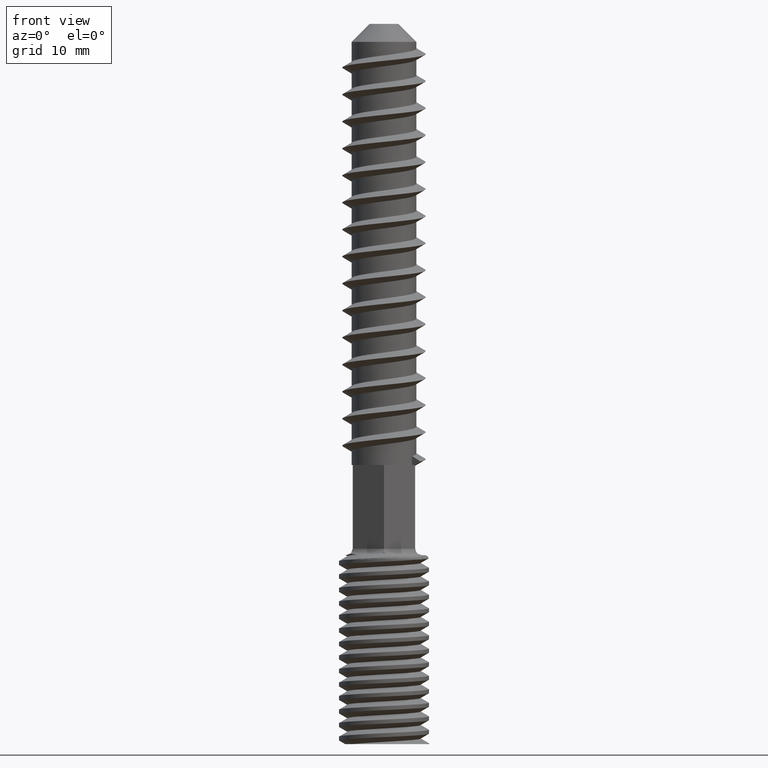
[diagram: clean part render]
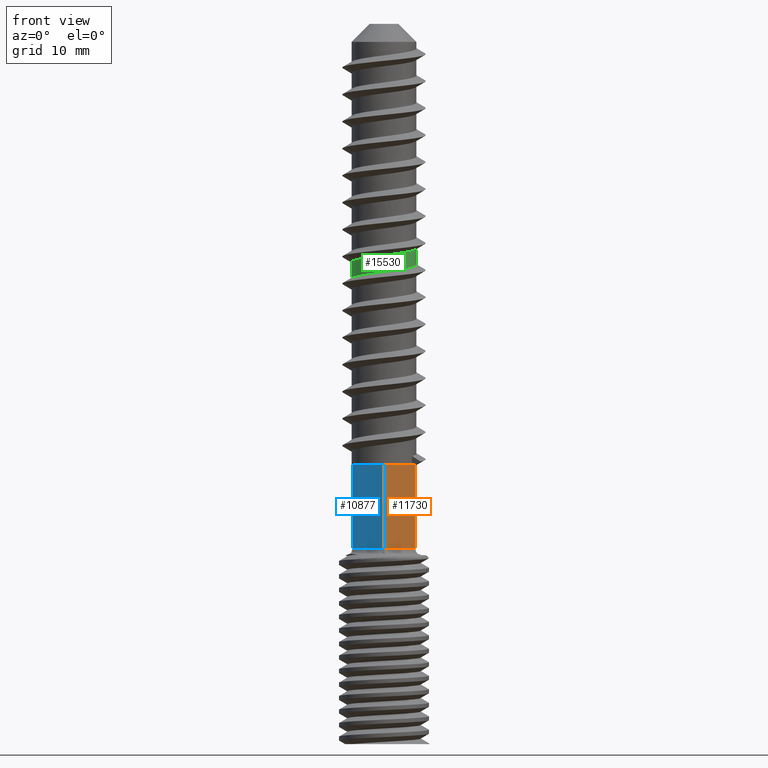
[diagram: same view with three faces highlighted in distinct colors, each labeled with its STEP entity id]
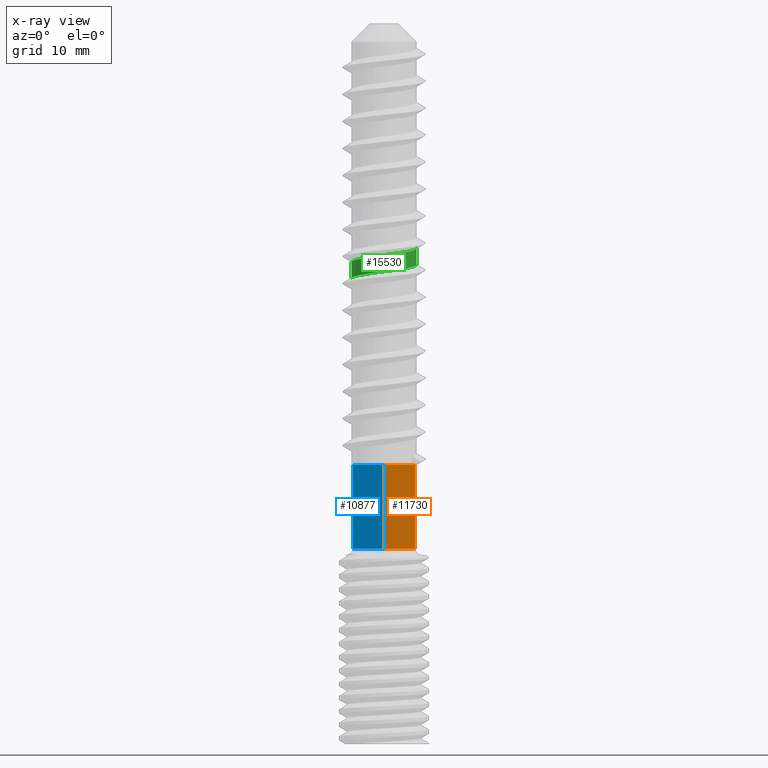
[diagram: x-ray of the same camera — body ghosted, the three highlighted faces saturated]
A machine part, front view with three faces highlighted in distinct colors.
The next image is the same camera in x-ray (body ghosted, the three faces saturated) — at least one of them is partly hidden behind the body in this view.
Their STEP definitions:

[orange] entity #11730 — the highlighted planar face has unit normal (-0.5, 0.866, 0).
#507 = CARTESIAN_POINT ( 'NONE',  ( 3.464101615137753900, -2.000000000000000000, -37.50000000000000000 ) ) ;
#1354 = CARTESIAN_POINT ( 'NONE',  ( -5.161413159156343100E-016, -4.000000000000000000, -46.79289321881345400 ) ) ;
#1397 = EDGE_CURVE ( 'NONE', #6578, #10977, #16166, .T. ) ;
#1486 = ORIENTED_EDGE ( 'NONE', *, *, #3380, .T. ) ;
#1498 = ORIENTED_EDGE ( 'NONE', *, *, #8461, .F. ) ;
#1565 = PLANE ( 'NONE',  #8994 ) ;
#2231 = VERTEX_POINT ( 'NONE', #14131 ) ;
#3147 = DIRECTION ( 'NONE',  ( -0.5000000000000001100, 0.8660254037844387100, 0.0000000000000000000 ) ) ;
#3380 = EDGE_CURVE ( 'NONE', #2231, #6578, #6943, .T. ) ;
#4048 = EDGE_CURVE ( 'NONE', #10977, #14747, #14921, .T. ) ;
#4105 = DIRECTION ( 'NONE',  ( -0.8660254037844386000, -0.5000000000000000000, 0.0000000000000000000 ) ) ;
#4258 = CARTESIAN_POINT ( 'NONE',  ( -5.161413159156343100E-016, -4.000000000000000000, -47.50000000000000000 ) ) ;
#5221 = VERTEX_POINT ( 'NONE', #6849 ) ;
#6120 = EDGE_CURVE ( 'NONE', #5221, #7996, #14106, .T. ) ;
#6500 = FACE_OUTER_BOUND ( 'NONE', #10248, .T. ) ;
#6578 = VERTEX_POINT ( 'NONE', #16855 ) ;
#6849 = CARTESIAN_POINT ( 'NONE',  ( -5.161413159156343100E-016, -4.000000000000000000, -46.79289321881345400 ) ) ;
#6909 = ORIENTED_EDGE ( 'NONE', *, *, #9095, .T. ) ;
#6943 = LINE ( 'NONE', #507, #18313 ) ;
#7636 = CARTESIAN_POINT ( 'NONE',  ( 1.154700538379161300, -3.333333333333385000, -46.79289321881345400 ) ) ;
#7996 = VERTEX_POINT ( 'NONE', #9232 ) ;
#8279 = DIRECTION ( 'NONE',  ( -0.8660254037844386000, -0.5000000000000000000, 0.0000000000000000000 ) ) ;
#8461 = EDGE_CURVE ( 'NONE', #5221, #14747, #15730, .T. ) ;
#8502 = ORIENTED_EDGE ( 'NONE', *, *, #4048, .T. ) ;
#8994 = AXIS2_PLACEMENT_3D ( 'NONE', #18592, #3147, #13992 ) ;
#9095 = EDGE_CURVE ( 'NONE', #7996, #2231, #12339, .T. ) ;
#9189 = CARTESIAN_POINT ( 'NONE',  ( 2.309401076758254200, -2.666666666666809500, -46.79289321881345400 ) ) ;
#9232 = CARTESIAN_POINT ( 'NONE',  ( 3.464101615137753900, -2.000000000000000000, -46.79289321881345400 ) ) ;
#10248 = EDGE_LOOP ( 'NONE', ( #1498, #12730, #6909, #1486, #14715, #8502 ) ) ;
#10321 = VECTOR ( 'NONE', #11772, 1000.000000000000200 ) ;
#10487 = DIRECTION ( 'NONE',  ( -0.0000000000000000000, -0.0000000000000000000, 1.000000000000000000 ) ) ;
#10977 = VERTEX_POINT ( 'NONE', #17506 ) ;
#11057 = CARTESIAN_POINT ( 'NONE',  ( -5.161413159156343100E-016, -4.000000000000000000, -37.50000000000000000 ) ) ;
#11597 = VECTOR ( 'NONE', #4105, 1000.000000000000200 ) ;
#11730 = ADVANCED_FACE ( 'NONE', ( #6500 ), #1565, .F. ) ;
#11772 = DIRECTION ( 'NONE',  ( -0.8660254037844386000, -0.5000000000000000000, 0.0000000000000000000 ) ) ;
#12339 = LINE ( 'NONE', #17988, #20090 ) ;
#12730 = ORIENTED_EDGE ( 'NONE', *, *, #6120, .T. ) ;
#13992 = DIRECTION ( 'NONE',  ( -0.8660254037844386000, -0.5000000000000000000, 0.0000000000000000000 ) ) ;
#14106 = B_SPLINE_CURVE_WITH_KNOTS ( 'NONE', 3,
 ( #1354, #7636, #9189, #20025 ),
 .UNSPECIFIED., .F., .F.,
 ( 4, 4 ),
 ( 0.0000000000000000000, 1.000000000000000000 ),
 .UNSPECIFIED. ) ;
#14131 = CARTESIAN_POINT ( 'NONE',  ( 3.464101615137753900, -2.000000000000000000, -37.50000000000000000 ) ) ;
#14715 = ORIENTED_EDGE ( 'NONE', *, *, #1397, .T. ) ;
#14747 = VERTEX_POINT ( 'NONE', #11057 ) ;
#14921 = LINE ( 'NONE', #16413, #10321 ) ;
#14938 = CARTESIAN_POINT ( 'NONE',  ( 3.464101615137753900, -2.000000000000000000, -37.50000000000000000 ) ) ;
#15225 = VECTOR ( 'NONE', #10487, 1000.000000000000000 ) ;
#15730 = LINE ( 'NONE', #4258, #15225 ) ;
#16166 = LINE ( 'NONE', #14938, #11597 ) ;
#16413 = CARTESIAN_POINT ( 'NONE',  ( 3.464101615137753900, -2.000000000000000000, -37.50000000000000000 ) ) ;
#16855 = CARTESIAN_POINT ( 'NONE',  ( 2.580578944992736100, -2.510102051443362300, -37.50000000000000000 ) ) ;
#17506 = CARTESIAN_POINT ( 'NONE',  ( 0.8835226701450180600, -3.489897948556635900, -37.50000000000000000 ) ) ;
#17988 = CARTESIAN_POINT ( 'NONE',  ( 3.464101615137753900, -2.000000000000000000, -47.50000000000000000 ) ) ;
#18313 = VECTOR ( 'NONE', #8279, 1000.000000000000200 ) ;
#18592 = CARTESIAN_POINT ( 'NONE',  ( 3.464101615137753900, -2.000000000000000000, -47.50000000000000000 ) ) ;
#19554 = DIRECTION ( 'NONE',  ( -0.0000000000000000000, -0.0000000000000000000, 1.000000000000000000 ) ) ;
#20025 = CARTESIAN_POINT ( 'NONE',  ( 3.464101615137753900, -2.000000000000000000, -46.79289321881345400 ) ) ;
#20090 = VECTOR ( 'NONE', #19554, 1000.000000000000000 ) ;

[blue] entity #10877 — the highlighted planar face has unit normal (0.5, 0.866, 0).
#418 = DIRECTION ( 'NONE',  ( -0.8660254037844386000, 0.5000000000000000000, 0.0000000000000000000 ) ) ;
#849 = VERTEX_POINT ( 'NONE', #8819 ) ;
#1104 = VECTOR ( 'NONE', #5176, 1000.000000000000000 ) ;
#1720 = VERTEX_POINT ( 'NONE', #13447 ) ;
#2017 = DIRECTION ( 'NONE',  ( -0.8660254037844386000, 0.5000000000000000000, 0.0000000000000000000 ) ) ;
#2395 = ORIENTED_EDGE ( 'NONE', *, *, #8461, .T. ) ;
#2446 = ORIENTED_EDGE ( 'NONE', *, *, #13114, .T. ) ;
#3092 = LINE ( 'NONE', #6310, #20069 ) ;
#3631 = ORIENTED_EDGE ( 'NONE', *, *, #20127, .T. ) ;
#4184 = AXIS2_PLACEMENT_3D ( 'NONE', #19006, #9741, #418 ) ;
#4258 = CARTESIAN_POINT ( 'NONE',  ( -5.161413159156343100E-016, -4.000000000000000000, -47.50000000000000000 ) ) ;
#4925 = LINE ( 'NONE', #14448, #9034 ) ;
#5049 = DIRECTION ( 'NONE',  ( -0.8660254037844386000, 0.5000000000000000000, 0.0000000000000000000 ) ) ;
#5176 = DIRECTION ( 'NONE',  ( -0.0000000000000000000, -0.0000000000000000000, 1.000000000000000000 ) ) ;
#5202 = ORIENTED_EDGE ( 'NONE', *, *, #10802, .T. ) ;
#5221 = VERTEX_POINT ( 'NONE', #6849 ) ;
#5635 = VERTEX_POINT ( 'NONE', #14689 ) ;
#5791 = LINE ( 'NONE', #15380, #14042 ) ;
#5899 = DIRECTION ( 'NONE',  ( -0.8660254037844386000, 0.5000000000000000000, 0.0000000000000000000 ) ) ;
#6310 = CARTESIAN_POINT ( 'NONE',  ( -5.161413159156343100E-016, -4.000000000000000000, -37.50000000000000000 ) ) ;
#6849 = CARTESIAN_POINT ( 'NONE',  ( -5.161413159156343100E-016, -4.000000000000000000, -46.79289321881345400 ) ) ;
#7940 = EDGE_CURVE ( 'NONE', #14747, #15305, #5791, .T. ) ;
#8181 = PLANE ( 'NONE',  #4184 ) ;
#8440 = LINE ( 'NONE', #16001, #1104 ) ;
#8461 = EDGE_CURVE ( 'NONE', #5221, #14747, #15730, .T. ) ;
#8819 = CARTESIAN_POINT ( 'NONE',  ( -2.580578944992733000, -2.510102051443365400, -37.50000000000000000 ) ) ;
#8945 = CARTESIAN_POINT ( 'NONE',  ( -5.161413159156343100E-016, -4.000000000000000000, -46.79289321881345400 ) ) ;
#9034 = VECTOR ( 'NONE', #2017, 1000.000000000000200 ) ;
#9741 = DIRECTION ( 'NONE',  ( 0.5000000000000001100, 0.8660254037844387100, 0.0000000000000000000 ) ) ;
#10487 = DIRECTION ( 'NONE',  ( -0.0000000000000000000, -0.0000000000000000000, 1.000000000000000000 ) ) ;
#10802 = EDGE_CURVE ( 'NONE', #849, #1720, #3092, .T. ) ;
#10877 = ADVANCED_FACE ( 'NONE', ( #19132 ), #8181, .F. ) ;
#11057 = CARTESIAN_POINT ( 'NONE',  ( -5.161413159156343100E-016, -4.000000000000000000, -37.50000000000000000 ) ) ;
#11925 = CARTESIAN_POINT ( 'NONE',  ( -2.309401076759138000, -2.666666666666300100, -46.79289321881346100 ) ) ;
#13114 = EDGE_CURVE ( 'NONE', #5635, #5221, #17983, .T. ) ;
#13447 = CARTESIAN_POINT ( 'NONE',  ( -3.464101615137754800, -2.000000000000000000, -37.50000000000000000 ) ) ;
#14042 = VECTOR ( 'NONE', #5899, 1000.000000000000200 ) ;
#14133 = ORIENTED_EDGE ( 'NONE', *, *, #7940, .T. ) ;
#14408 = CARTESIAN_POINT ( 'NONE',  ( -0.8835226701450215000, -3.489897948556635000, -37.50000000000000000 ) ) ;
#14448 = CARTESIAN_POINT ( 'NONE',  ( -5.161413159156343100E-016, -4.000000000000000000, -37.50000000000000000 ) ) ;
#14689 = CARTESIAN_POINT ( 'NONE',  ( -3.464101615137754800, -2.000000000000000000, -46.79289321881345400 ) ) ;
#14747 = VERTEX_POINT ( 'NONE', #11057 ) ;
#14910 = CARTESIAN_POINT ( 'NONE',  ( -3.464101615137754800, -2.000000000000000000, -46.79289321881345400 ) ) ;
#15225 = VECTOR ( 'NONE', #10487, 1000.000000000000000 ) ;
#15305 = VERTEX_POINT ( 'NONE', #14408 ) ;
#15380 = CARTESIAN_POINT ( 'NONE',  ( -5.161413159156343100E-016, -4.000000000000000000, -37.50000000000000000 ) ) ;
#15730 = LINE ( 'NONE', #4258, #15225 ) ;
#16001 = CARTESIAN_POINT ( 'NONE',  ( -3.464101615137754800, -2.000000000000000000, -47.50000000000000000 ) ) ;
#17209 = ORIENTED_EDGE ( 'NONE', *, *, #18421, .F. ) ;
#17444 = EDGE_LOOP ( 'NONE', ( #17209, #2446, #2395, #14133, #3631, #5202 ) ) ;
#17983 = B_SPLINE_CURVE_WITH_KNOTS ( 'NONE', 3,
 ( #14910, #11925, #18207, #8945 ),
 .UNSPECIFIED., .F., .F.,
 ( 4, 4 ),
 ( 0.0000000000000000000, 1.000000000000000000 ),
 .UNSPECIFIED. ) ;
#18207 = CARTESIAN_POINT ( 'NONE',  ( -1.154700538379605000, -3.333333333333129600, -46.79289321881346800 ) ) ;
#18421 = EDGE_CURVE ( 'NONE', #5635, #1720, #8440, .T. ) ;
#19006 = CARTESIAN_POINT ( 'NONE',  ( -5.161413159156343100E-016, -4.000000000000000000, -47.50000000000000000 ) ) ;
#19132 = FACE_OUTER_BOUND ( 'NONE', #17444, .T. ) ;
#20069 = VECTOR ( 'NONE', #5049, 1000.000000000000200 ) ;
#20127 = EDGE_CURVE ( 'NONE', #15305, #849, #4925, .T. ) ;

[green] entity #15530 — the highlighted cylindrical surface (edge-blend (fillet) strip) has radius 3.6 mm, axis along (-0, -0, -1).
#72 = CARTESIAN_POINT ( 'NONE',  ( -0.001273498965122202500, -3.600008534216459800, -14.21259963270011400 ) ) ;
#139 = CARTESIAN_POINT ( 'NONE',  ( -1.025480112269097700, -3.451451366725145000, -14.35010446539633500 ) ) ;
#212 = CARTESIAN_POINT ( 'NONE',  ( -1.953459925939966500, -3.024420234234936000, -14.48692190638841700 ) ) ;
#284 = CARTESIAN_POINT ( 'NONE',  ( -2.435906216946909500, -2.650741003625058900, -14.56634035617683900 ) ) ;
#364 = CARTESIAN_POINT ( 'NONE',  ( -3.287235017634777100, -1.472189547636234600, -14.76214171099243600 ) ) ;
#437 = CARTESIAN_POINT ( 'NONE',  ( -3.599999999999999600, 5.947965109068438500E-015, -14.96243556529822500 ) ) ;
#739 = CARTESIAN_POINT ( 'NONE',  ( 0.0000000000000000000, 0.0000000000000000000, 11.50000000000000000 ) ) ;
#952 = FACE_OUTER_BOUND ( 'NONE', #9576, .T. ) ;
#1207 = ORIENTED_EDGE ( 'NONE', *, *, #9721, .F. ) ;
#1364 = CARTESIAN_POINT ( 'NONE',  ( 3.466260319851641700, -0.9736952085705723500, -13.59372447369084800 ) ) ;
#1429 = CARTESIAN_POINT ( 'NONE',  ( 3.423803458662557200, -1.112461179749797200, -15.40000000000000400 ) ) ;
#1433 = CARTESIAN_POINT ( 'NONE',  ( 3.236058148344677300, -1.578262448695012300, -13.67815296890448300 ) ) ;
#1505 = CARTESIAN_POINT ( 'NONE',  ( 2.538913495245731100, -2.553405595115662200, -13.83982484742612200 ) ) ;
#1572 = CARTESIAN_POINT ( 'NONE',  ( 1.338766677863837400, -3.341940815391229800, -14.03000532809110400 ) ) ;
#1645 = CARTESIAN_POINT ( 'NONE',  ( -0.03713367576130809100, -3.599827985805466000, -14.21720591294399000 ) ) ;
#1715 = CARTESIAN_POINT ( 'NONE',  ( -1.298997023832710000, -3.362027739093514700, -14.38879695402708900 ) ) ;
#1787 = CARTESIAN_POINT ( 'NONE',  ( -2.045810064838124600, -2.962328132613338400, -14.50135333492414900 ) ) ;
#1857 = CARTESIAN_POINT ( 'NONE',  ( -2.475837484302652900, -2.613552922284838600, -14.57357929690265100 ) ) ;
#1923 = CARTESIAN_POINT ( 'NONE',  ( -3.412108989460700800, -1.153054870282660800, -14.80695775959879200 ) ) ;
#2026 = CARTESIAN_POINT ( 'NONE',  ( -3.600000000000000100, 0.0000000000000000000, 11.50000000000000000 ) ) ;
#2649 = VECTOR ( 'NONE', #11354, 1000.000000000000000 ) ;
#2721 = VERTEX_POINT ( 'NONE', #6427 ) ;
#2866 = CARTESIAN_POINT ( 'NONE',  ( 3.600000000032445700, -0.3231666220939533600, -13.50596398588983300 ) ) ;
#2881 = AXIS2_PLACEMENT_3D ( 'NONE', #739, #19393, #13173 ) ;
#2936 = CARTESIAN_POINT ( 'NONE',  ( 3.443107548438815200, -1.051375318813419800, -13.60419661359180800 ) ) ;
#3013 = CARTESIAN_POINT ( 'NONE',  ( 2.116026908252914800, -2.912461179749802100, -15.70000000000000600 ) ) ;
#3018 = CARTESIAN_POINT ( 'NONE',  ( 3.100679103292010900, -1.834702965871396300, -13.71686304284926000 ) ) ;
#3029 = CARTESIAN_POINT ( 'NONE',  ( -3.599999999999999600, 5.947965109068438500E-015, -14.96243556529822500 ) ) ;
#3087 = CARTESIAN_POINT ( 'NONE',  ( 2.433645579025169000, -2.652875075753223600, -13.85901436118013700 ) ) ;
#3155 = CARTESIAN_POINT ( 'NONE',  ( 1.297948047994125000, -3.357893427395129300, -14.03590325286325900 ) ) ;
#3220 = CARTESIAN_POINT ( 'NONE',  ( -0.1604228264149202000, -3.597050058751857500, -14.23314716413053000 ) ) ;
#3292 = CARTESIAN_POINT ( 'NONE',  ( -1.612881301775519000, -3.220117710333730600, -14.43501688987884700 ) ) ;
#3368 = CARTESIAN_POINT ( 'NONE',  ( -2.095360364868798200, -2.927417252431855100, -14.50916508803712400 ) ) ;
#3444 = CARTESIAN_POINT ( 'NONE',  ( -2.793697313265733200, -2.297717871038487600, -14.63320871345388800 ) ) ;
#3525 = CARTESIAN_POINT ( 'NONE',  ( -3.447085846362045700, -1.038086931045098400, -14.82246403084463200 ) ) ;
#4520 = CARTESIAN_POINT ( 'NONE',  ( 3.414226258368754600, -1.142558466397696900, -13.61653284083151900 ) ) ;
#4583 = CARTESIAN_POINT ( 'NONE',  ( 1.431617662130559300E-014, -3.600000000000000100, -16.00000000000000400 ) ) ;
#4588 = CARTESIAN_POINT ( 'NONE',  ( 2.978414192724372400, -2.022605490823922400, -13.74702093352542100 ) ) ;
#4653 = CARTESIAN_POINT ( 'NONE',  ( 2.417656887327562600, -2.667393711962526800, -13.86180850313560800 ) ) ;
#4722 = CARTESIAN_POINT ( 'NONE',  ( 1.247466870134428000, -3.377074642544545000, -14.04317267099161400 ) ) ;
#4782 = CARTESIAN_POINT ( 'NONE',  ( -0.4084447557152157100, -3.578513700060198800, -14.26575246592316600 ) ) ;
#4853 = CARTESIAN_POINT ( 'NONE',  ( -1.699133842054593800, -3.173790334549977400, -14.44808579526445900 ) ) ;
#4926 = CARTESIAN_POINT ( 'NONE',  ( -2.137584913820615100, -2.896724637111411000, -14.51590039646672600 ) ) ;
#5000 = CARTESIAN_POINT ( 'NONE',  ( -2.999876860636573600, -1.990176022875788300, -14.68309200127831300 ) ) ;
#5069 = CARTESIAN_POINT ( 'NONE',  ( -3.454319163814116900, -1.013835512560307400, -14.82573625879292900 ) ) ;
#6006 = CARTESIAN_POINT ( 'NONE',  ( 3.534128698406690600, -0.6855208303300809300, -13.55486857349401800 ) ) ;
#6074 = CARTESIAN_POINT ( 'NONE',  ( 3.364982077094957900, -1.280998237847928800, -13.63554493160489000 ) ) ;
#6102 = ORIENTED_EDGE ( 'NONE', *, *, #9870, .F. ) ;
#6142 = CARTESIAN_POINT ( 'NONE',  ( -2.116026908252891700, -2.912461179749819000, -16.30000000000000400 ) ) ;
#6146 = CARTESIAN_POINT ( 'NONE',  ( 2.940262142778992300, -2.077245785874712900, -13.75600191141621500 ) ) ;
#6208 = CARTESIAN_POINT ( 'NONE',  ( 2.390327416781200800, -2.691971976615892300, -13.86653632204986400 ) ) ;
#6275 = CARTESIAN_POINT ( 'NONE',  ( 1.042107747507591900, -3.446716576001651200, -14.07232597927193800 ) ) ;
#6344 = CARTESIAN_POINT ( 'NONE',  ( 3.600000000000000100, 4.408728476930471200E-016, 11.50000000000000000 ) ) ;
#6348 = CARTESIAN_POINT ( 'NONE',  ( -0.7245272298150387000, -3.526956291283045400, -14.30840057536565300 ) ) ;
#6421 = CARTESIAN_POINT ( 'NONE',  ( -1.706037131799343200, -3.170087233192112400, -14.44912535763387300 ) ) ;
#6427 = CARTESIAN_POINT ( 'NONE',  ( 3.599999999999954800, 4.005047357475627900E-007, -13.46243248971605900 ) ) ;
#6490 = CARTESIAN_POINT ( 'NONE',  ( -2.253366075483302000, -2.808111616489097800, -14.53476808546504300 ) ) ;
#6562 = CARTESIAN_POINT ( 'NONE',  ( -3.021449439222815500, -1.957363977489693600, -14.68837819689582200 ) ) ;
#6637 = CARTESIAN_POINT ( 'NONE',  ( -3.473397670704650300, -0.9465922709834584400, -14.83482074730823500 ) ) ;
#7570 = CARTESIAN_POINT ( 'NONE',  ( 3.531643682145281500, -0.6982178825376321700, -13.55658056358609900 ) ) ;
#7647 = CARTESIAN_POINT ( 'NONE',  ( 3.319417165726743900, -1.393546139912202400, -13.65137259842100500 ) ) ;
#7701 = CARTESIAN_POINT ( 'NONE',  ( -3.423803458662548300, -1.112461179749824300, -16.60000000000000500 ) ) ;
#7705 = CARTESIAN_POINT ( 'NONE',  ( 2.913879184656220600, -2.114224530552145400, -13.76212645929984300 ) ) ;
#7768 = CARTESIAN_POINT ( 'NONE',  ( 2.228387748252781600, -2.830628143771895200, -13.89404341642516100 ) ) ;
#7834 = CARTESIAN_POINT ( 'NONE',  ( 0.6858199878094315400, -3.536213413168700600, -14.12153959956735400 ) ) ;
#7905 = CARTESIAN_POINT ( 'NONE',  ( -0.8777351736911220800, -3.491403162056852000, -14.32951822351664200 ) ) ;
#7972 = CARTESIAN_POINT ( 'NONE',  ( -1.740711023024481800, -3.151246927280737500, -14.45435661892452800 ) ) ;
#8052 = CARTESIAN_POINT ( 'NONE',  ( -2.377890684848501700, -2.703267961201199400, -14.55601102272071600 ) ) ;
#8129 = CARTESIAN_POINT ( 'NONE',  ( -3.107825663453676500, -1.818818285841778500, -14.71029246121021600 ) ) ;
#8203 = CARTESIAN_POINT ( 'NONE',  ( -3.502900718740499500, -0.8321321904560193800, -14.85029697857916100 ) ) ;
#8393 = VERTEX_POINT ( 'NONE', #18130 ) ;
#9072 = VERTEX_POINT ( 'NONE', #14820 ) ;
#9130 = CARTESIAN_POINT ( 'NONE',  ( 3.523949179704040100, -0.7363436350123180300, -13.56172108922048400 ) ) ;
#9195 = CARTESIAN_POINT ( 'NONE',  ( 3.600000000000001400, -0.5701839851683163700, -15.32688142232027100 ) ) ;
#9200 = CARTESIAN_POINT ( 'NONE',  ( 3.295455412033623700, -1.449281576733420400, -13.65935119824662400 ) ) ;
#9265 = CARTESIAN_POINT ( 'NONE',  ( -3.599999999999999600, -1.450377088799350000E-014, -16.75000000000000400 ) ) ;
#9268 = CARTESIAN_POINT ( 'NONE',  ( 2.827417237088368100, -2.230462321334822500, -13.78165016986456900 ) ) ;
#9340 = CARTESIAN_POINT ( 'NONE',  ( 1.817995021252385400, -3.116124276872972200, -13.95937068972959400 ) ) ;
#9405 = CARTESIAN_POINT ( 'NONE',  ( 0.1337326350190789200, -3.599758470988634800, -14.19526452147576600 ) ) ;
#9472 = DIRECTION ( 'NONE',  ( -0.0000000000000000000, -0.0000000000000000000, -1.000000000000000000 ) ) ;
#9476 = CARTESIAN_POINT ( 'NONE',  ( -0.9541018228923186000, -3.471358234231281000, -14.34013858334549400 ) ) ;
#9544 = CARTESIAN_POINT ( 'NONE',  ( -1.880211641082949700, -3.071013429594169300, -14.47558657468245100 ) ) ;
#9576 = EDGE_LOOP ( 'NONE', ( #6102, #11234, #12661, #1207 ) ) ;
#9617 = CARTESIAN_POINT ( 'NONE',  ( -2.423830131628474900, -2.661787831339995400, -14.56417549263408200 ) ) ;
#9690 = CARTESIAN_POINT ( 'NONE',  ( -3.237400901383579400, -1.579172100721519100, -14.74657097438307400 ) ) ;
#9721 = EDGE_CURVE ( 'NONE', #9072, #8393, #11144, .T. ) ;
#9759 = CARTESIAN_POINT ( 'NONE',  ( -3.600000000000001000, -0.3151373404791513200, -14.91994365464084600 ) ) ;
#9870 = EDGE_CURVE ( 'NONE', #2721, #9072, #16189, .T. ) ;
#10686 = CARTESIAN_POINT ( 'NONE',  ( 3.488856663242948700, -0.8910807960385986900, -13.58258392451833500 ) ) ;
#10764 = CARTESIAN_POINT ( 'NONE',  ( 3.257758831870924100, -1.532693722946544500, -13.67145195969412600 ) ) ;
#10832 = CARTESIAN_POINT ( 'NONE',  ( 2.621444314483480000, -2.472193040764768300, -13.82435200916301100 ) ) ;
#10897 = CARTESIAN_POINT ( 'NONE',  ( 1.366019726555669300, -3.330893984803231500, -14.02605440954485700 ) ) ;
#10935 = LINE ( 'NONE', #2026, #2649 ) ;
#10962 = CARTESIAN_POINT ( 'NONE',  ( -0.01343301443939500300, -3.599994443243887500, -14.21415847866413200 ) ) ;
#11039 = CARTESIAN_POINT ( 'NONE',  ( -1.091364989629924000, -3.430865262008639100, -14.35938497452673700 ) ) ;
#11103 = CARTESIAN_POINT ( 'NONE',  ( -2.023165227068787900, -2.977848774342894100, -14.49780234004623500 ) ) ;
#11144 =( BOUNDED_CURVE ( )  B_SPLINE_CURVE ( 2, ( #20030, #9195, #1429, #12307, #3013, #13858, #4583, #15412, #6142, #16968, #7701, #18534, #9265 ),
 .UNSPECIFIED., .F., .F. ) 
 B_SPLINE_CURVE_WITH_KNOTS ( ( 3, 2, 2, 2, 2, 2, 3 ),
 ( 0.5156250000000000000, 0.5187500000000000400, 0.5250000000000000200, 0.5312500000000000000, 0.5374999999999999800, 0.5437499999999999600, 0.5468750000000000000 ),
 .UNSPECIFIED. ) 
 CURVE ( )  GEOMETRIC_REPRESENTATION_ITEM ( )  RATIONAL_B_SPLINE_CURVE ( ( 0.9755282581475768200, 0.9755282581475768200, 1.000000000000000000, 0.9510565162951535300, 1.000000000000000000, 0.9510565162951535300, 1.000000000000000000, 0.9510565162951535300, 1.000000000000000000, 0.9510565162951535300, 1.000000000000000000, 0.9755282581475768200, 0.9755282581475768200 ) ) 
 REPRESENTATION_ITEM ( '' )  );
#11179 = CARTESIAN_POINT ( 'NONE',  ( -2.454770340072094400, -2.633371019833096800, -14.56973652151048200 ) ) ;
#11234 = ORIENTED_EDGE ( 'NONE', *, *, #13563, .T. ) ;
#11253 = CARTESIAN_POINT ( 'NONE',  ( -3.374588148781128900, -1.259131030290190400, -14.79233510360029200 ) ) ;
#11354 = DIRECTION ( 'NONE',  ( -0.0000000000000000000, -0.0000000000000000000, -1.000000000000000000 ) ) ;
#12069 = VECTOR ( 'NONE', #9472, 1000.000000000000000 ) ;
#12247 = CARTESIAN_POINT ( 'NONE',  ( 3.446597598325501300, -1.039786122468266100, -13.60263632609761700 ) ) ;
#12307 = CARTESIAN_POINT ( 'NONE',  ( 3.062342910067352700, -2.224922359499609000, -15.55000000000000200 ) ) ;
#12311 = CARTESIAN_POINT ( 'NONE',  ( 3.161985886356434100, -1.724466305903869600, -13.69999100583323100 ) ) ;
#12381 = CARTESIAN_POINT ( 'NONE',  ( 2.455051613824204400, -2.633289205696249400, -13.85519666297265600 ) ) ;
#12446 = CARTESIAN_POINT ( 'NONE',  ( 1.304536316018390000, -3.355329944975260900, -14.03495141293241800 ) ) ;
#12518 = CARTESIAN_POINT ( 'NONE',  ( -0.07314916286853218000, -3.599399459425932900, -14.22184520111738100 ) ) ;
#12583 = CARTESIAN_POINT ( 'NONE',  ( -1.426709952948816800, -3.306817635156014100, -14.40745277463754600 ) ) ;
#12652 = CARTESIAN_POINT ( 'NONE',  ( -2.078911679185877500, -2.939099849751773500, -14.50656610272897700 ) ) ;
#12661 = ORIENTED_EDGE ( 'NONE', *, *, #15865, .T. ) ;
#12727 = CARTESIAN_POINT ( 'NONE',  ( -2.610602839736640300, -2.484407553906695200, -14.59842238948971400 ) ) ;
#12794 = CARTESIAN_POINT ( 'NONE',  ( -3.446029582746638300, -1.041598329881036700, -14.82199066377266300 ) ) ;
#12938 = B_SPLINE_CURVE_WITH_KNOTS ( 'NONE', 3,
 ( #13723, #2866, #15278, #6006, #16835, #7570, #18395, #9130, #19962, #10686, #1364, #12247, #2936, #13794, #4520, #15351, #6074, #16904, #7647, #18468, #9200, #20034, #10764, #1433, #12311, #3018, #13864, #4588, #15417, #6146, #16974, #7705, #18539, #9268, #20102, #10832, #1505, #12381, #3087, #13938, #4653, #15483, #6208, #17040, #7768, #18600, #9340, #20165, #10897, #1572, #12446, #3155, #14000, #4722, #15547, #6275, #17105, #7834, #18667, #9405, #72, #10962, #1645, #12518, #3220, #14067, #4782, #15619, #6348, #17171, #7905, #18737, #9476, #139, #11039, #1715, #12583, #3292, #14140, #4853, #15687, #6421, #17241, #7972, #18809, #9544, #212, #11103, #1787, #12652, #3368, #14211, #4926, #15755, #6490, #17317, #8052, #18881, #9617, #284, #11179, #1857, #12727, #3444, #14283, #5000, #15828, #6562, #17389, #8129, #18950, #9690, #364, #11253, #1923, #12794, #3525, #14354, #5069, #15901, #6637, #17459, #8203, #19033, #9759, #437 ),
 .UNSPECIFIED., .F., .F.,
 ( 4, 2, 2, 1, 1, 1, 1, 2, 2, 1, 2, 2, 2, 2, 2, 2, 1, 2, 2, 2, 2, 2, 2, 2, 1, 1, 1, 2, 2, 2, 2, 1, 1, 2, 2, 2, 2, 1, 1, 2, 2, 2, 2, 1, 2, 2, 2, 2, 1, 1, 1, 1, 2, 2, 2, 2, 2, 2, 2, 1, 2, 2, 2, 1, 1, 1, 2, 2, 2, 2, 1, 1, 2, 2, 4 ),
 ( 0.4749565971554590100, 0.4770086357425218400, 0.4770406988454447000, 0.4770727619483675600, 0.4771368881542132900, 0.4772651405659046900, 0.4775216453892875400, 0.4780346550360532500, 0.4781629074477447000, 0.4782911598594361000, 0.4785476646828189500, 0.4790606743295846600, 0.4793171791529675100, 0.4795736839763503600, 0.4800866936231160700, 0.4811127129166474200, 0.4813692177400302800, 0.4814333439458760000, 0.4814974701517217300, 0.4816257225634131300, 0.4821387322101788300, 0.4831647515037102400, 0.4836777611504759500, 0.4837418873563216800, 0.4838060135621673500, 0.4839342659738588000, 0.4841907707972416500, 0.4852167900907730600, 0.4872688286778358900, 0.4875253335012187400, 0.4875894597070644700, 0.4876535859129101900, 0.4877818383246015900, 0.4882948479713673000, 0.4893208672648987100, 0.4913729058519615300, 0.4915011582636529800, 0.4916294106753443800, 0.4918859154987272300, 0.4923989251454929400, 0.4934249444390243500, 0.4939379540857900000, 0.4940662064974814500, 0.4941944589091728500, 0.4944509637325557000, 0.4954769830260871100, 0.4965030023196185200, 0.4965350654225413300, 0.4965671285254642000, 0.4966312547313098700, 0.4967595071430012700, 0.4970160119663840600, 0.4975290216131496000, 0.4977855264365324000, 0.4979137788482237400, 0.4980420312599151400, 0.4985550409066806800, 0.4990680505534462700, 0.4991963029651376200, 0.4993245553768290200, 0.4995810602002118100, 0.5016330987872739100, 0.5016972249931196400, 0.5017613511989653700, 0.5018896036106567100, 0.5021461084340395100, 0.5026591180808049900, 0.5036851373743360700, 0.5047111566678671400, 0.5047752828737127600, 0.5048394090795584900, 0.5049676614912498300, 0.5052241663146326300, 0.5057371759613981100, 0.5077892145484601500 ),
 .UNSPECIFIED. ) ;
#13173 = DIRECTION ( 'NONE',  ( -1.000000000000000000, 0.0000000000000000000, 0.0000000000000000000 ) ) ;
#13563 = EDGE_CURVE ( 'NONE', #2721, #16550, #12938, .T. ) ;
#13723 = CARTESIAN_POINT ( 'NONE',  ( 3.599999999999954800, 4.005047357475627900E-007, -13.46243248971605900 ) ) ;
#13794 = CARTESIAN_POINT ( 'NONE',  ( 3.431525235967381300, -1.088583577887047800, -13.60922105148087800 ) ) ;
#13858 = CARTESIAN_POINT ( 'NONE',  ( 1.169710906438477000, -3.599999999999995200, -15.85000000000000300 ) ) ;
#13864 = CARTESIAN_POINT ( 'NONE',  ( 3.003878282371999800, -1.984436162201852300, -13.74084477128205300 ) ) ;
#13938 = CARTESIAN_POINT ( 'NONE',  ( 2.417470289497984500, -2.667553802565162600, -13.86183975131703000 ) ) ;
#14000 = CARTESIAN_POINT ( 'NONE',  ( 1.277711389740314100, -3.365645704699626400, -14.03882066945783800 ) ) ;
#14067 = CARTESIAN_POINT ( 'NONE',  ( -0.2407265185958950600, -3.592380491852463100, -14.24365220204218700 ) ) ;
#14140 = CARTESIAN_POINT ( 'NONE',  ( -1.671516062190179500, -3.188566538971457500, -14.44392518450966800 ) ) ;
#14211 = CARTESIAN_POINT ( 'NONE',  ( -2.123748346758618700, -2.906888334308492800, -14.51368407293192000 ) ) ;
#14283 = CARTESIAN_POINT ( 'NONE',  ( -2.996146961240946400, -1.995801775372807900, -14.68218267175852400 ) ) ;
#14354 = CARTESIAN_POINT ( 'NONE',  ( -3.449973695046607300, -1.028448740619886800, -14.82376429315836400 ) ) ;
#14820 = CARTESIAN_POINT ( 'NONE',  ( 3.599999999999999600, 1.411478086417758300E-014, -15.25000000000000200 ) ) ;
#15278 = CARTESIAN_POINT ( 'NONE',  ( 3.560205885532174500, -0.5506592725370732500, -13.53668374750655400 ) ) ;
#15351 = CARTESIAN_POINT ( 'NONE',  ( 3.397403477053238400, -1.191077172244316100, -13.62317002773326800 ) ) ;
#15412 = CARTESIAN_POINT ( 'NONE',  ( -1.169710906438448300, -3.600000000000004500, -16.15000000000000600 ) ) ;
#15417 = CARTESIAN_POINT ( 'NONE',  ( 2.951260839271307100, -2.061589430943315800, -13.75342300843776000 ) ) ;
#15483 = CARTESIAN_POINT ( 'NONE',  ( 2.406743203773781000, -2.677245074801398500, -13.86369918450180600 ) ) ;
#15530 = ADVANCED_FACE ( 'NONE', ( #952 ), #16475, .T. ) ;
#15547 = CARTESIAN_POINT ( 'NONE',  ( 1.137815314795146600, -3.416829384064369500, -14.05886465300982600 ) ) ;
#15619 = CARTESIAN_POINT ( 'NONE',  ( -0.5297811901689699600, -3.563253210200089300, -14.28193955925402900 ) ) ;
#15687 = CARTESIAN_POINT ( 'NONE',  ( -1.699041137176211500, -3.173842304732345200, -14.44807176066767200 ) ) ;
#15755 = CARTESIAN_POINT ( 'NONE',  ( -2.205017822337998400, -2.846475469038751700, -14.52676616957775800 ) ) ;
#15828 = CARTESIAN_POINT ( 'NONE',  ( -3.008538752839769800, -1.977057498828437700, -14.68520870158925200 ) ) ;
#15865 = EDGE_CURVE ( 'NONE', #16550, #8393, #10935, .T. ) ;
#15901 = CARTESIAN_POINT ( 'NONE',  ( -3.464541120660181900, -0.9786434222167719200, -14.83048851708790400 ) ) ;
#16189 = LINE ( 'NONE', #6344, #12069 ) ;
#16475 = CYLINDRICAL_SURFACE ( 'NONE', #2881, 3.600000000000000100 ) ;
#16550 = VERTEX_POINT ( 'NONE', #3029 ) ;
#16835 = CARTESIAN_POINT ( 'NONE',  ( 3.533153064084225900, -0.6905394520838475900, -13.55554525214942400 ) ) ;
#16904 = CARTESIAN_POINT ( 'NONE',  ( 3.345028501208917100, -1.331461220930709700, -13.64259557427682000 ) ) ;
#16968 = CARTESIAN_POINT ( 'NONE',  ( -3.062342910067334900, -2.224922359499633900, -16.44999999999999900 ) ) ;
#16974 = CARTESIAN_POINT ( 'NONE',  ( 2.935901452471903800, -2.083420739664381600, -13.75702102160572000 ) ) ;
#17040 = CARTESIAN_POINT ( 'NONE',  ( 2.351709238106156200, -2.725981816083565200, -13.87316411815346000 ) ) ;
#17105 = CARTESIAN_POINT ( 'NONE',  ( 0.8212298185169107900, -3.508412238602848500, -14.10308926738332000 ) ) ;
#17171 = CARTESIAN_POINT ( 'NONE',  ( -0.7915560592477991500, -3.512617287372872300, -14.31758431008874400 ) ) ;
#17241 = CARTESIAN_POINT ( 'NONE',  ( -1.716501468088576200, -3.164448183382554200, -14.45070219919217200 ) ) ;
#17317 = CARTESIAN_POINT ( 'NONE',  ( -2.339801453297532000, -2.736508483441407500, -14.54939051203652200 ) ) ;
#17389 = CARTESIAN_POINT ( 'NONE',  ( -3.051001067784799400, -1.911307650377378000, -14.69573479982568600 ) ) ;
#17459 = CARTESIAN_POINT ( 'NONE',  ( -3.491103295751389900, -0.8799494325029387800, -14.84383036237215400 ) ) ;
#18130 = CARTESIAN_POINT ( 'NONE',  ( -3.599999999999999600, -1.450377088799350000E-014, -16.75000000000000400 ) ) ;
#18395 = CARTESIAN_POINT ( 'NONE',  ( 3.529365171929409700, -0.7097097598950096200, -13.55813004381703000 ) ) ;
#18468 = CARTESIAN_POINT ( 'NONE',  ( 3.312184718453701200, -1.410629594260089500, -13.65380686190136200 ) ) ;
#18534 = CARTESIAN_POINT ( 'NONE',  ( -3.599999999999997000, -0.5701839851683450100, -16.67311857767973000 ) ) ;
#18539 = CARTESIAN_POINT ( 'NONE',  ( 2.899330638285831300, -2.134118084798610300, -13.76544844441000100 ) ) ;
#18600 = CARTESIAN_POINT ( 'NONE',  ( 2.110530397127033700, -2.918817490758320000, -13.91317332984220700 ) ) ;
#18667 = CARTESIAN_POINT ( 'NONE',  ( 0.3210751397963119100, -3.594096296875946000, -14.17071501644889300 ) ) ;
#18737 = CARTESIAN_POINT ( 'NONE',  ( -0.9052874588656386600, -3.484407108193924100, -14.33334235688483500 ) ) ;
#18809 = CARTESIAN_POINT ( 'NONE',  ( -1.788304179843713600, -3.124683396430802100, -14.46156594944121900 ) ) ;
#18881 = CARTESIAN_POINT ( 'NONE',  ( -2.419625438447804600, -2.665621709622898500, -14.56342328282403500 ) ) ;
#18950 = CARTESIAN_POINT ( 'NONE',  ( -3.152678087265698100, -1.739039435455336900, -14.72250380901086300 ) ) ;
#19033 = CARTESIAN_POINT ( 'NONE',  ( -3.559851404957109700, -0.5758270734850542400, -14.88493109043615100 ) ) ;
#19393 = DIRECTION ( 'NONE',  ( -0.0000000000000000000, -0.0000000000000000000, -1.000000000000000000 ) ) ;
#19962 = CARTESIAN_POINT ( 'NONE',  ( 3.512731979281242400, -0.7888884595051450800, -13.56880554615271500 ) ) ;
#20030 = CARTESIAN_POINT ( 'NONE',  ( 3.599999999999999600, 1.411478086417758300E-014, -15.25000000000000200 ) ) ;
#20034 = CARTESIAN_POINT ( 'NONE',  ( 3.286507256806579400, -1.469491651798636900, -13.66226795052740800 ) ) ;
#20102 = CARTESIAN_POINT ( 'NONE',  ( 2.772582464719435300, -2.297545137209753700, -13.79330530992020500 ) ) ;
#20165 = CARTESIAN_POINT ( 'NONE',  ( 1.610042367351196500, -3.228482612766970100, -13.99054968656984100 ) ) ;